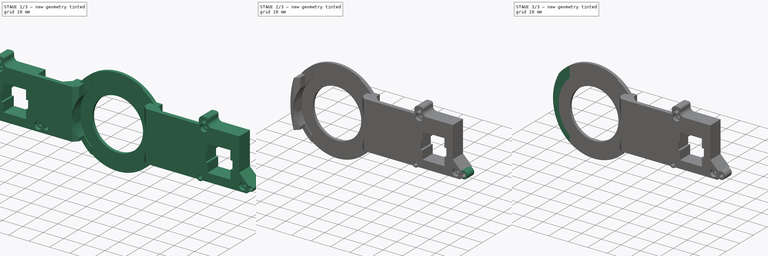
[diagram: build sequence overview — one tinted view per stage of 3, left to right]
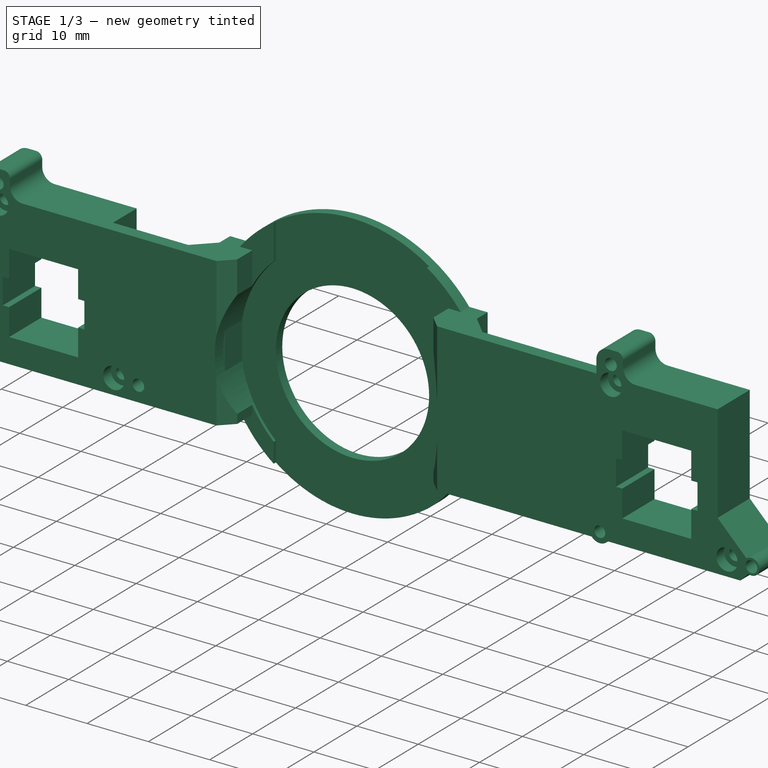
[diagram: stage 1 of 3 — iso view after this stage's code; geometry added in this stage tinted green]
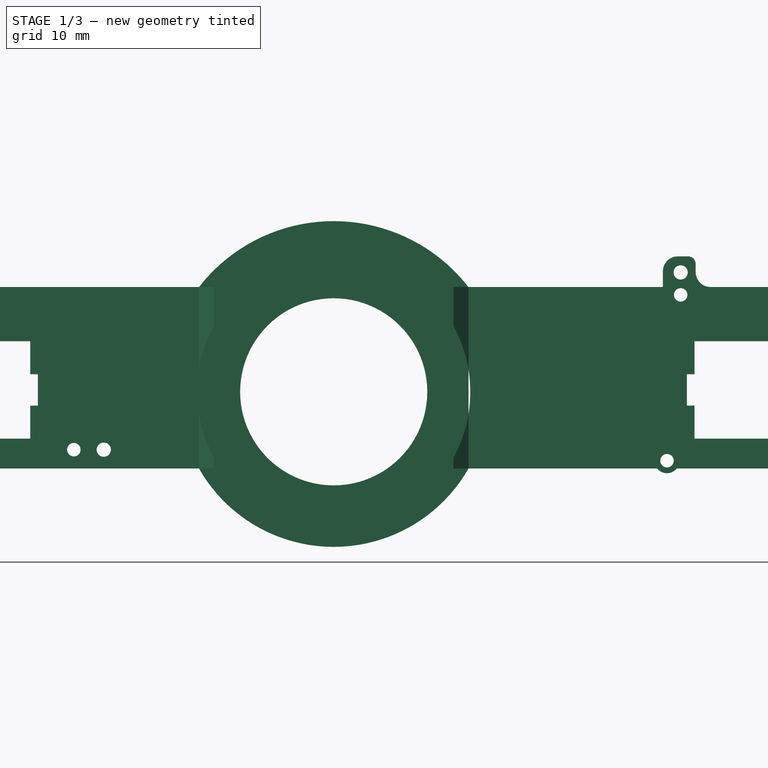
[diagram: stage 1 of 3 — front view after this stage's code; geometry added in this stage tinted green]
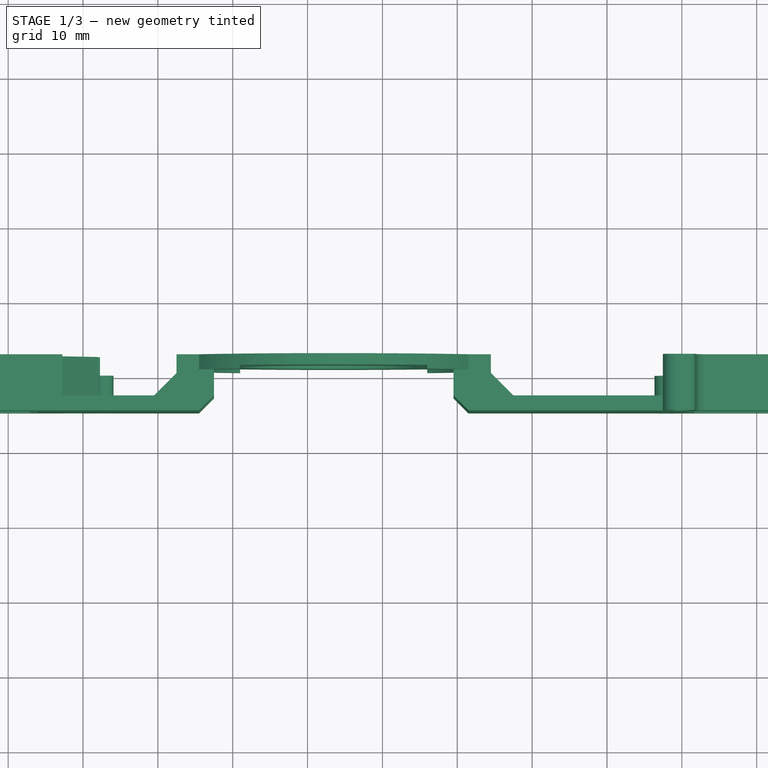
[diagram: stage 1 of 3 — top view after this stage's code; geometry added in this stage tinted green]
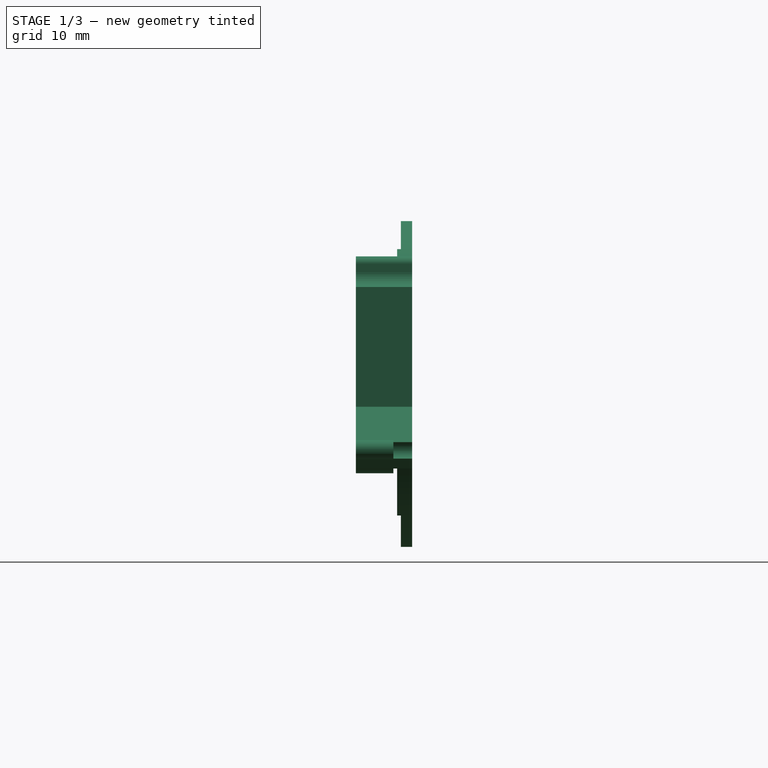
[diagram: stage 1 of 3 — right view after this stage's code; geometry added in this stage tinted green]
FCSTD DOCUMENT  (FreeCAD 0.19R24291 (Git))
Label: Sample Plate One Side
License: All rights reserved
LicenseURL: http://en.wikipedia.org/wiki/All_rights_reserved
objects: Sketcher::SketchObject×6, PartDesign::Pocket×3, PartDesign::Pad×2, Part::Feature×1, Part::Refine×1, PartDesign::FeatureBase×1, PartDesign::Body×1
note: 20 computed .brp shape members not serialized (recipe doc carries the construction recipe); baked Part::Feature solids carry a one-line shape summary decoded from their .brp

FEATURE [Part::Feature] Assembly_XYZ_Stage_40_XY_Stage_Sample_Adapter_20001_solid  label="Assembly_XYZ_Stage_40_XY_Stage_Sample_Adapter_20001 (Solid)"
  shape: bbox 127.7 x 7.5 x 43.52 mm, 5298 faces (baked)
FEATURE [Part::Refine] Assembly_XYZ_Stage_40_XY_Stage_Sample_Adapter_20001_solid001  label="Assembly_XYZ_Stage_40_XY_Stage_Sample_Adapter_20001 (Solid)001"
  Source = -> Assembly_XYZ_Stage_40_XY_Stage_Sample_Adapter_20001_solid
FEATURE [PartDesign::FeatureBase] BaseFeature
  BaseFeature = -> Assembly_XYZ_Stage_40_XY_Stage_Sample_Adapter_20001_solid001
FEATURE [Sketcher::SketchObject] Sketch  label="Wider Peg Holes"
  ExternalGeometry = -> [BaseFeature]
  FullyConstrained = true
  MapMode = 5
  Placement = pos=(0,55.1165,0) rot=(1,0,0;1.5708rad)
  Support = -> [BaseFeature]
  sketch-geometry (8):
    g0: Circle CenterX=29.8443 CenterY=41.4417 CenterZ=0 NormalX=0 NormalY=0 NormalZ=1 AngleXU=0 Radius=0.85
    g1: Circle CenterX=52.7736 CenterY=17.7624 CenterZ=0 NormalX=0 NormalY=0 NormalZ=1 AngleXU=0 Radius=0.85
    g2: Circle CenterX=152.774 CenterY=17.7624 CenterZ=0 NormalX=0 NormalY=0 NormalZ=1 AngleXU=0 Radius=0.85
    g3: Circle CenterX=129.844 CenterY=41.4417 CenterZ=0 NormalX=0 NormalY=0 NormalZ=1 AngleXU=0 Radius=0.849998
    g4: Circle CenterX=129.844 CenterY=41.4417 CenterZ=0 NormalX=0 NormalY=0 NormalZ=1 AngleXU=0 Radius=0.95
    g5: Circle CenterX=152.774 CenterY=17.7624 CenterZ=0 NormalX=0 NormalY=0 NormalZ=1 AngleXU=0 Radius=0.95
    g6: Circle CenterX=52.7736 CenterY=17.7624 CenterZ=0 NormalX=0 NormalY=0 NormalZ=1 AngleXU=0 Radius=0.95
    g7: Circle CenterX=29.8443 CenterY=41.4417 CenterZ=0 NormalX=0 NormalY=0 NormalZ=1 AngleXU=0 Radius=0.95
  constraints (20):
    c: PointOnObject(g-3,g0)
    c: PointOnObject(g-5,g0)
    c: PointOnObject(g-4,g0)
    c: PointOnObject(g-6,g1)
    c: PointOnObject(g-8,g1)
    c: PointOnObject(g-7,g1)
    c: PointOnObject(g-10,g2)
    c: PointOnObject(g-11,g2)
    c: PointOnObject(g-9,g2)
    c: PointOnObject(g-13,g3)
    c: PointOnObject(g-14,g3)
    c: PointOnObject(g-12,g3)
    c: Coincident(g4,g3)
    c: Coincident(g5,g2)
    c: Coincident(g6,g1)
    c: Coincident(g7,g0)
    c: Diameter(g7) = 1.9
    c: Equal(g7,g6)
    c: Equal(g4,g5)
    c: Equal(g7,g4)
FEATURE [PartDesign::Pocket] Pocket
  BaseFeature = -> BaseFeature
  Length = 0
  Length2 = 100
  Profile = -> Sketch
  Type = 3
  UpToFace = -> BaseFeature [Face524]
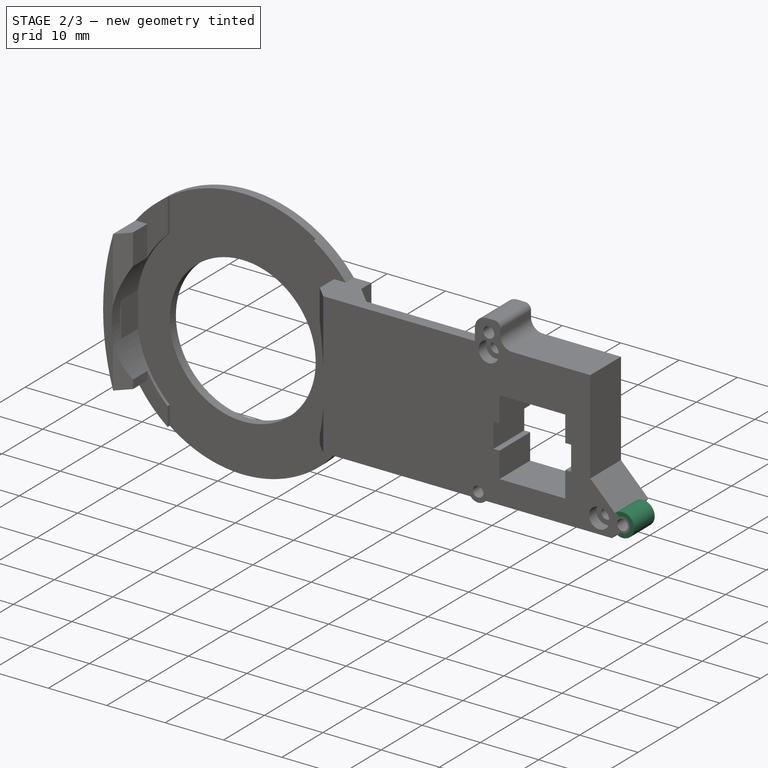
[diagram: stage 2 of 3 — iso view after this stage's code; geometry added in this stage tinted green]
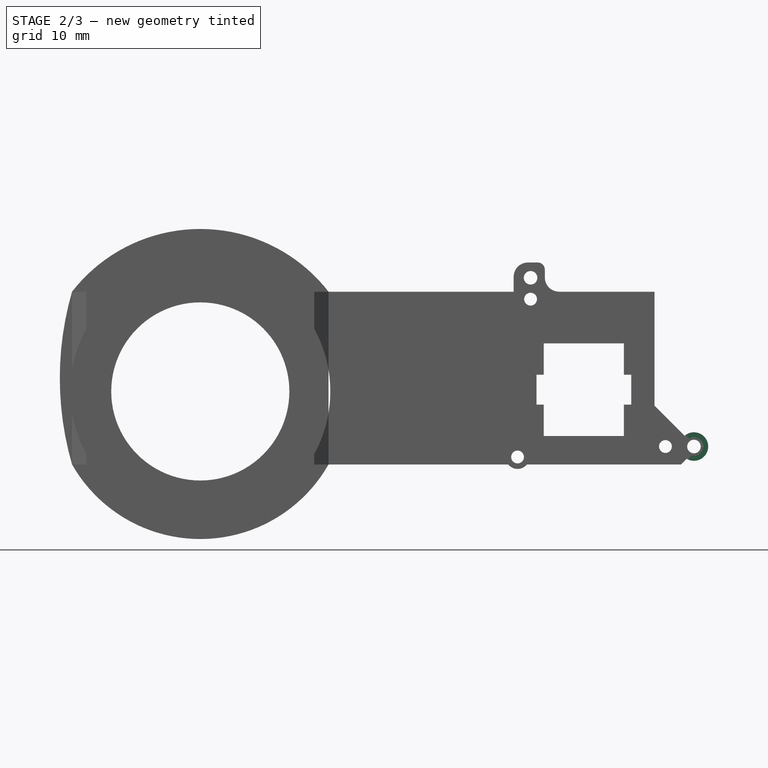
[diagram: stage 2 of 3 — front view after this stage's code; geometry added in this stage tinted green]
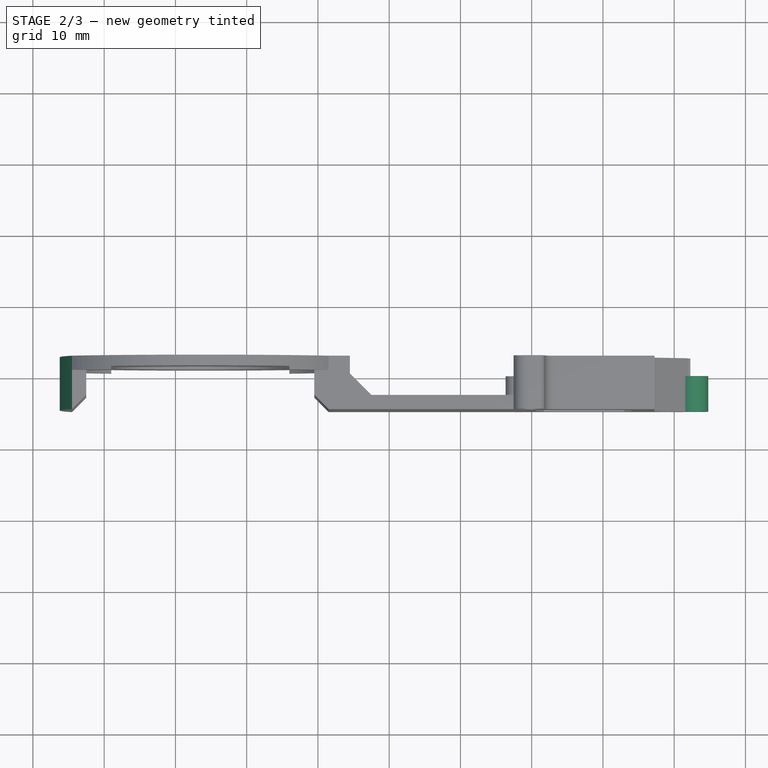
[diagram: stage 2 of 3 — top view after this stage's code; geometry added in this stage tinted green]
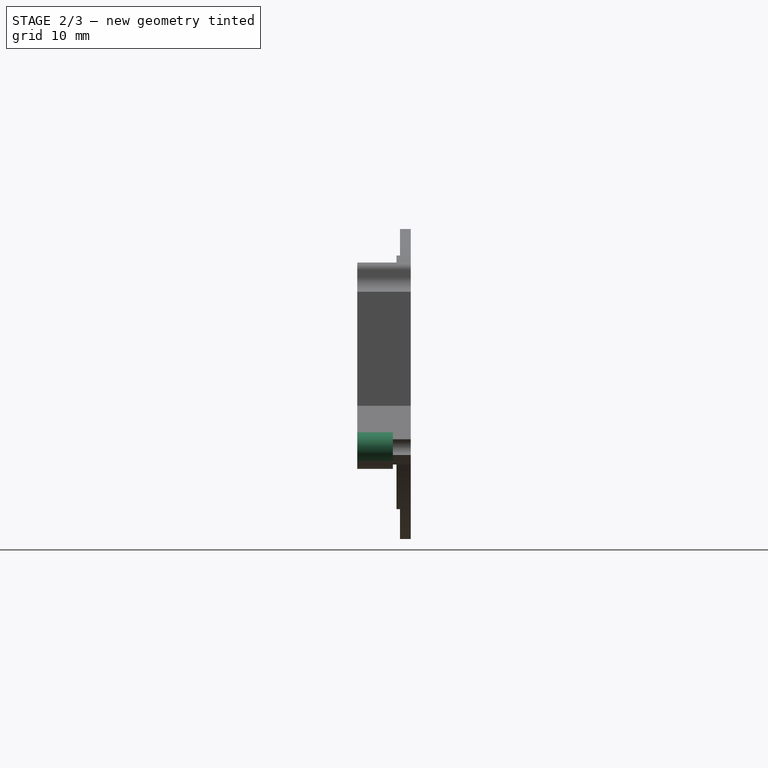
[diagram: stage 2 of 3 — right view after this stage's code; geometry added in this stage tinted green]
FEATURE [Sketcher::SketchObject] Sketch001  label="Wider Peg Support"
  ExternalGeometry = -> [Pocket]
  FullyConstrained = true
  MapMode = 5
  Placement = pos=(0,60.1165,0) rot=(0,0.707107,0.707107;3.14159rad)
  Support = -> [Pocket]
  sketch-geometry (4):
    g0: ArcOfCircle CenterX=-152.774 CenterY=17.7624 CenterZ=0 NormalX=0 NormalY=0 NormalZ=1 AngleXU=0 Radius=2 StartAngle=0.856167 EndAngle=5.25087
    g1: LineSegment StartX=-151.748 StartY=16.0454 StartZ=0 EndX=-152.267 EndY=16.5649 EndZ=0
    g2: LineSegment StartX=-151.463 StartY=19.273 StartZ=0 EndX=-151.96 EndY=18.7761 EndZ=0
    g3: ArcOfCircle CenterX=-152.774 CenterY=17.7624 CenterZ=0 NormalX=0 NormalY=0 NormalZ=1 AngleXU=0 Radius=1.3 StartAngle=0.894401 EndAngle=5.11228
  constraints (11):
    c: PointOnObject(g0,g-3)
    c: PointOnObject(g0,g-4)
    c: Diameter(g0) = 4
    c: Coincident(g0,g-5)
    c: Coincident(g1,g0)
    c: Coincident(g1,g-4)
    c: Coincident(g2,g0)
    c: Coincident(g2,g-3)
    c: Coincident(g3,g2)
    c: Coincident(g3,g1)
    c: PointOnObject(g-6,g3)
FEATURE [PartDesign::Pad] Pad
  BaseFeature = -> Pocket
  Direction = (1,1,1)
  Length = 10
  Length2 = 100
  Profile = -> Sketch001
  Type = 3
  UpToFace = -> Pocket [Face226]
FEATURE [Sketcher::SketchObject] Sketch002  label="Remove Side"
  ExternalGeometry = -> [Pad]
  FullyConstrained = true
  MapMode = 5
  Placement = pos=(0,62.6165,0) rot=(0,0.707107,0.707107;3.14159rad)
  Support = -> [Pad]
  sketch-geometry (10):
    g0: ArcOfCircle CenterX=-107.444 CenterY=27.3667 CenterZ=0 NormalX=0 NormalY=0 NormalZ=1 AngleXU=0 Radius=43.67 StartAngle=6.00184 EndAngle=6.56453
    g1: LineSegment StartX=-29.5912 StartY=43.6917 StartZ=0 EndX=-31.5912 EndY=43.6917 EndZ=0
    g2: LineSegment StartX=-32.5912 StartY=42.5917 StartZ=0 EndX=-32.5912 EndY=41.4917 EndZ=0
    g3: LineSegment StartX=-65.4912 StartY=39.4917 StartZ=0 EndX=-34.4912 EndY=39.4917 EndZ=0
    g4: LineSegment StartX=-27.4693 StartY=41.5938 StartZ=0 EndX=-27.4693 EndY=17.8738 EndZ=0
    g5: LineSegment StartX=-65.4912 StartY=15.2417 StartZ=0 EndX=-29.3243 EndY=15.2417 EndZ=0
    g6: ArcOfCircle CenterX=-27.977 CenterY=16.2619 CenterZ=0 NormalX=0 NormalY=0 NormalZ=1 AngleXU=0 Radius=1.69 StartAngle=3.78968 EndAngle=7.54885
    g7: ArcOfCircle CenterX=-29.3574 CenterY=41.8061 CenterZ=0 NormalX=0 NormalY=0 NormalZ=1 AngleXU=0 Radius=1.9 StartAngle=6.1712 EndAngle=7.97738
    g8: ArcOfCircle CenterX=-31.729 CenterY=42.8124 CenterZ=0 NormalX=0 NormalY=0 NormalZ=1 AngleXU=0 Radius=0.89 StartAngle=1.41533 EndAngle=3.39222
    g9: ArcOfCircle CenterX=-34.6796 CenterY=41.5732 CenterZ=0 NormalX=0 NormalY=0 NormalZ=1 AngleXU=0 Radius=2.09 StartAngle=4.80266 EndAngle=6.24418
  constraints (31):
    c: Coincident(g0,g-3)
    c: Coincident(g0,g-6)
    c: Coincident(g3,g0)
    c: Coincident(g4,g-14)
    c: Coincident(g5,g0)
    c: Coincident(g5,g-17)
    c: Radius(g0) = 43.67
    c: Coincident(g6,g5)
    c: Coincident(g6,g4)
    c: Coincident(g7,g4)
    c: Coincident(g7,g1)
    c: Coincident(g8,g1)
    c: Coincident(g8,g2)
    c: Radius(g8) = 0.89
    c: Radius(g7) = 1.9
    c: Radius(g6) = 1.69
    c: Vertical(g4)
    c: Horizontal(g1)
    c: Vertical(g2)
    c: DistanceY(g4,g4) = 23.72
    c: DistanceX(g1,g1) = 2
    c: DistanceY(g2,g2) = 1.1
    c: DistanceY(g2,g1) = 1.1
    c: DistanceX(g2,g1) = 1
    c: Coincident(g9,g2)
    c: Coincident(g9,g3)
    c: Horizontal(g3)
    c: DistanceX(g3,g3) = 31
    c: DistanceX(g3,g2) = 1.9
    c: DistanceY(g3,g2) = 2
    c: Radius(g9) = 2.09
FEATURE [PartDesign::Pocket] Pocket001
  BaseFeature = -> Pad
  Length = 0
  Length2 = 100
  Profile = -> Sketch002
  Type = 3
  UpToFace = -> Pad [Face755]
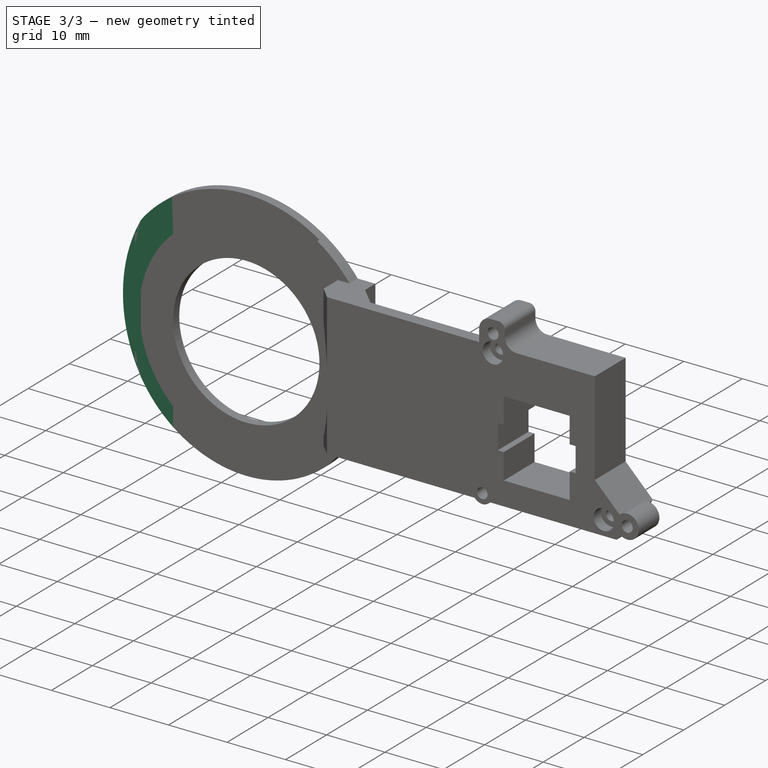
[diagram: stage 3 of 3 — iso view after this stage's code; geometry added in this stage tinted green]
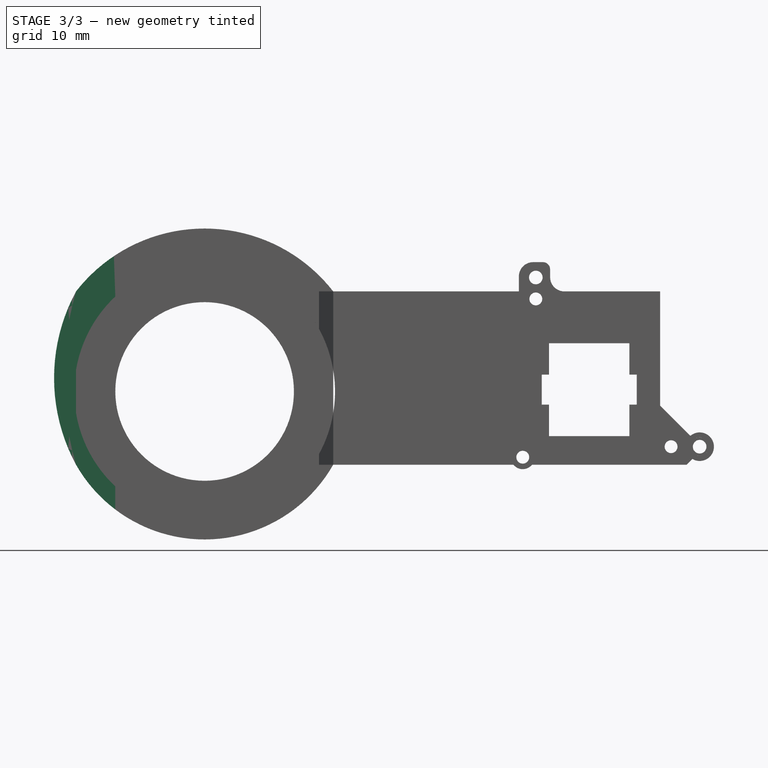
[diagram: stage 3 of 3 — front view after this stage's code; geometry added in this stage tinted green]
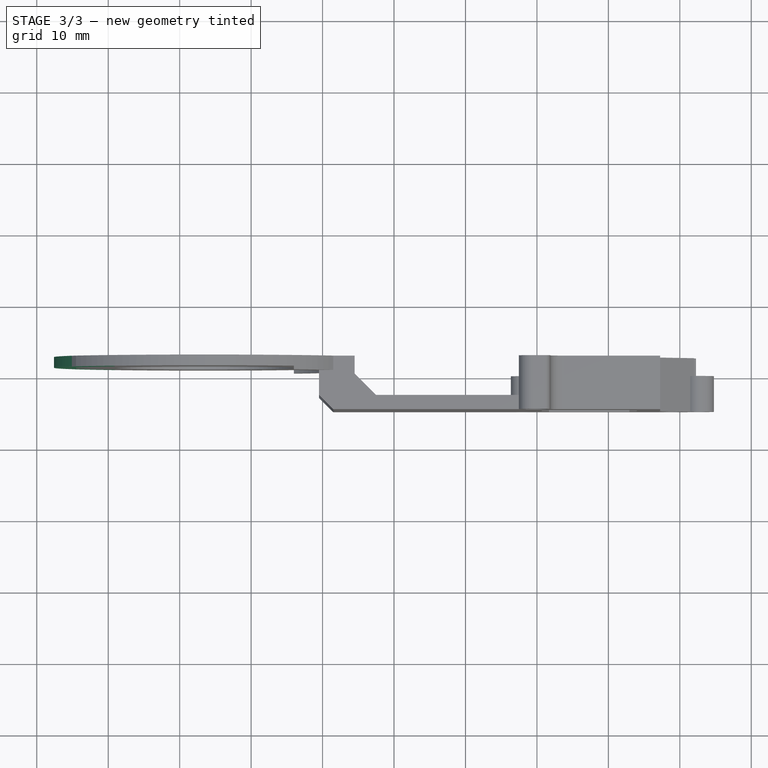
[diagram: stage 3 of 3 — top view after this stage's code; geometry added in this stage tinted green]
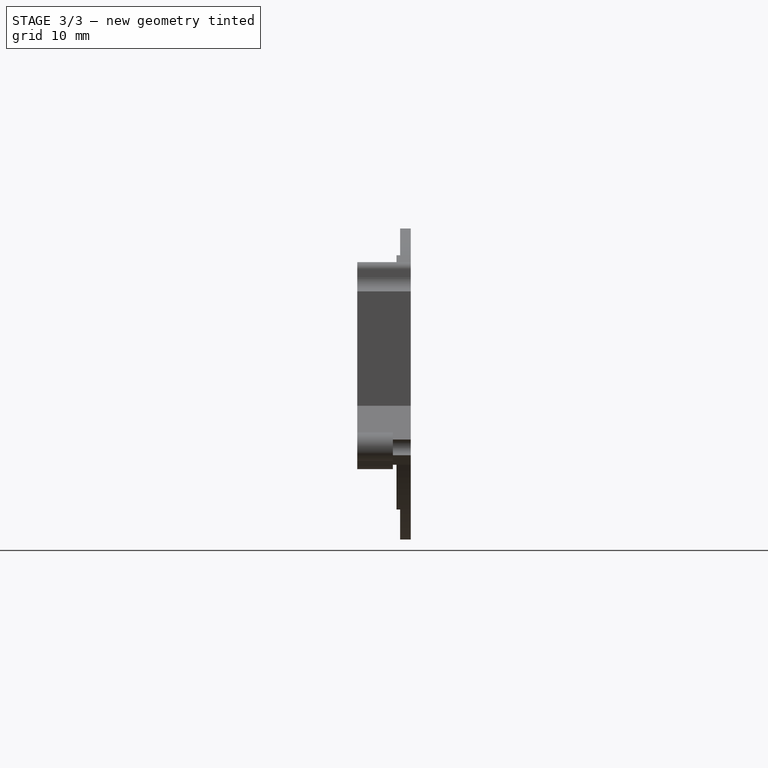
[diagram: stage 3 of 3 — right view after this stage's code; geometry added in this stage tinted green]
FEATURE [Sketcher::SketchObject] Sketch003  label="Remove Extra Side Bits"
  ExternalGeometry = -> [Pocket001]
  FullyConstrained = true
  MapMode = 5
  Placement = pos=(0,55.1165,0) rot=(1,0,0;1.5708rad)
  Support = -> [Pocket001]
  sketch-geometry (4):
    g0: ArcOfCircle CenterX=79.9665 CenterY=26.7693 CenterZ=0 NormalX=0 NormalY=0 NormalZ=1 AngleXU=0 Radius=19.93 StartAngle=2.03794 EndAngle=4.24524
    g1: ArcOfCircle CenterX=85.9976 CenterY=25.4917 CenterZ=0 NormalX=0 NormalY=0 NormalZ=1 AngleXU=0 Radius=20.05 StartAngle=2.41651 EndAngle=3.86667
    g2: LineSegment StartX=70.9912 StartY=12.1946 StartZ=0 EndX=70.9912 EndY=8.97466 EndZ=0
    g3: LineSegment StartX=70.9912 StartY=38.7888 StartZ=0 EndX=70.9912 EndY=44.5639 EndZ=0
  constraints (10):
    c: Coincident(g0,g-3)
    c: Coincident(g0,g-4)
    c: Coincident(g1,g-4)
    c: Coincident(g1,g-3)
    c: Coincident(g2,g1)
    c: Coincident(g2,g0)
    c: Coincident(g3,g1)
    c: Coincident(g3,g0)
    c: Radius(g1) = 20.05
    c: Radius(g0) = 19.93
FEATURE [PartDesign::Pocket] Pocket002
  BaseFeature = -> Pocket001
  Length = 0
  Length2 = 100
  Profile = -> Sketch003
  Type = 3
  UpToFace = -> Pocket001 [Face689]
FEATURE [Sketcher::SketchObject] Sketch004  label="Fill in Circular Mount Plate"
  ExternalGeometry = -> [Pocket002]
  FullyConstrained = true
  MapMode = 5
  Placement = pos=(0,62.6165,0) rot=(0,0.707107,0.707107;3.14159rad)
  Support = -> [Pocket002]
  sketch-geometry (2):
    g0: ArcOfCircle CenterX=-87.89 CenterY=27.3667 CenterZ=0 NormalX=0 NormalY=0 NormalZ=1 AngleXU=0 Radius=25.47 StartAngle=5.78703 EndAngle=6.77934
    g1: ArcOfCircle CenterX=-107.444 CenterY=27.3667 CenterZ=0 NormalX=0 NormalY=0 NormalZ=1 AngleXU=0 Radius=43.67 StartAngle=6.00184 EndAngle=6.56453
  constraints (6):
    c: Coincident(g0,g-3)
    c: Coincident(g0,g-4)
    c: Coincident(g1,g0)
    c: Coincident(g1,g0)
    c: Tangent(g1,g-5)
    c: Radius(g0) = 25.47
FEATURE [PartDesign::Pad] Pad001
  BaseFeature = -> Pocket002
  Direction = (1,1,1)
  Length = 0
  Length2 = 100
  Profile = -> Sketch004
  Type = 3
  UpToFace = -> Pocket002 [Face743]
FEATURE [Sketcher::SketchObject] Sketch005  label="Motor Mount Sketch"
  ExternalGeometry = -> [Pad001]
  FullyConstrained = false
  MapMode = 5
  Placement = pos=(0,62.6165,0) rot=(0,0.707107,0.707107;3.14159rad)
  Support = -> [Pad001]
  sketch-geometry (12):
    g0: Circle CenterX=-152.774 CenterY=17.7624 CenterZ=0 NormalX=0 NormalY=0 NormalZ=1 AngleXU=0 Radius=1.3
    g1: ArcOfCircle CenterX=-130.844 CenterY=42.5917 CenterZ=0 NormalX=0 NormalY=0 NormalZ=1 AngleXU=0 Radius=1 StartAngle=1.5708 EndAngle=3.14159
    g2: ArcOfCircle CenterX=-129.469 CenterY=41.5917 CenterZ=0 NormalX=0 NormalY=0 NormalZ=1 AngleXU=0 Radius=2 StartAngle=6.51824e-07 EndAngle=1.5708
    g3: ArcOfCircle CenterX=-133.844 CenterY=41.4917 CenterZ=0 NormalX=0 NormalY=0 NormalZ=1 AngleXU=0 Radius=2 StartAngle=4.71239 EndAngle=6.28318
    g4: Circle CenterX=-148.774 CenterY=17.7624 CenterZ=0 NormalX=0 NormalY=0 NormalZ=1 AngleXU=0 Radius=1.675
    g5: Circle CenterX=-128.019 CenterY=16.2917 CenterZ=0 NormalX=0 NormalY=0 NormalZ=1 AngleXU=0 Radius=1.675
    g6: Circle CenterX=-129.844 CenterY=38.4417 CenterZ=0 NormalX=0 NormalY=0 NormalZ=1 AngleXU=0 Radius=0.899998
    g7: Circle CenterX=-129.844 CenterY=38.4417 CenterZ=0 NormalX=0 NormalY=0 NormalZ=1 AngleXU=0 Radius=1.675
    g8: Circle CenterX=-128.019 CenterY=16.2917 CenterZ=0 NormalX=0 NormalY=0 NormalZ=1 AngleXU=0 Radius=0.900001
    g9: Circle CenterX=-148.774 CenterY=17.7624 CenterZ=0 NormalX=0 NormalY=0 NormalZ=1 AngleXU=0 Radius=0.900003
    g10: LineSegment StartX=-150.944 StartY=15.2417 StartZ=0 EndX=-152.722 EndY=15.2417 EndZ=0
    g11: LineSegment StartX=-147.244 StartY=23.4917 StartZ=0 EndX=-154.057 EndY=23.4917 EndZ=0
  constraints (39):
    c: Coincident(g0,g-21)
    c: PointOnObject(g-9,g0)
    c: Coincident(g1,g-4)
    c: Coincident(g1,g-5)
    c: PointOnObject(g-30,g1)
    c: Coincident(g2,g-6)
    c: Coincident(g2,g-5)
    c: PointOnObject(g-29,g2)
    c: Coincident(g3,g-4)
    c: Coincident(g3,g-3)
    c: PointOnObject(g-28,g3)
    c: PointOnObject(g-32,g4)
    c: PointOnObject(g-33,g4)
    c: PointOnObject(g-34,g4)
    c: PointOnObject(g-31,g5)
    c: PointOnObject(g-7,g5)
    c: PointOnObject(g-6,g5)
    c: PointOnObject(g-24,g6)
    c: PointOnObject(g-26,g6)
    c: PointOnObject(g-25,g6)
    c: Coincident(g7,g6)
    c: PointOnObject(g-35,g7)
    c: Coincident(g8,g5)
    c: PointOnObject(g-22,g8)
    c: Coincident(g9,g4)
    c: PointOnObject(g-23,g9)
    c: DistanceX(g-17,g-6) = 3.2
    c: DistanceY(g-7,g-19) = 4
    c: DistanceX(g-5,g-5) = 1.375
    c: DistanceY(g-4,g-4) = 1.1
    c: DistanceX(g-3,g-3) = 13.4
    c: DistanceY(g-10,g-10) = 16
    c: DistanceX(g-7,g-7) = 21.6199
    c: Coincident(g10,g-8)
    c: Horizontal(g10)
    c: Coincident(g11,g-10)
    c: Horizontal(g11)
    c: Distance(g-8) = 1.87132
    c: Distance(g-9) = 6.66881
FEATURE [PartDesign::Body] Body
  BaseFeature = -> Assembly_XYZ_Stage_40_XY_Stage_Sample_Adapter_20001_solid001
  Group = -> [BaseFeature,Sketch,Pocket,Sketch001,Pad,Sketch002,Pocket001,Sketch003,Pocket002,Sketch004,Pad001,Sketch005]
  Origin = -> Origin
  Tip = -> Pad001
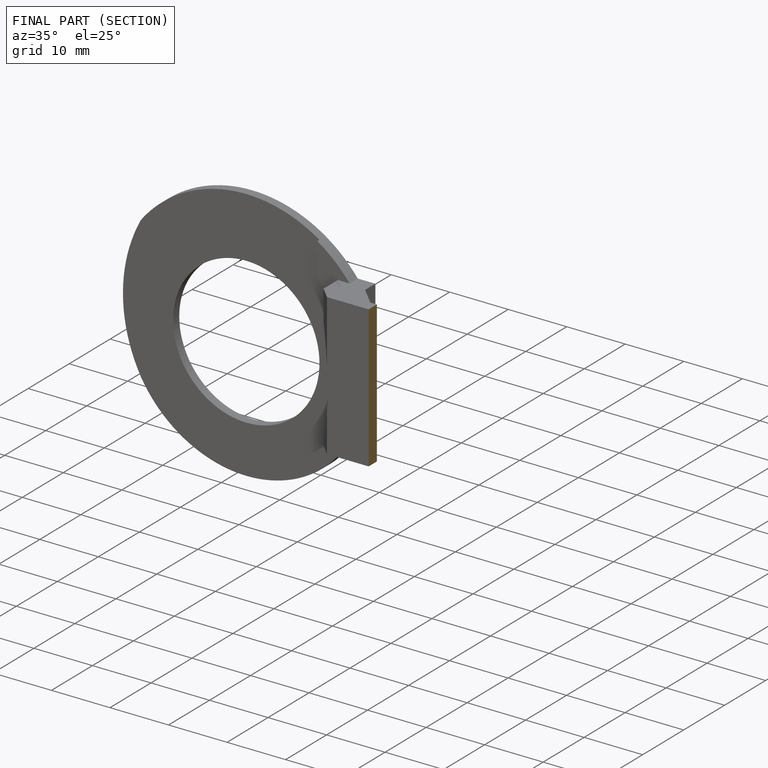
[diagram: finished part — half-section view (interior)]
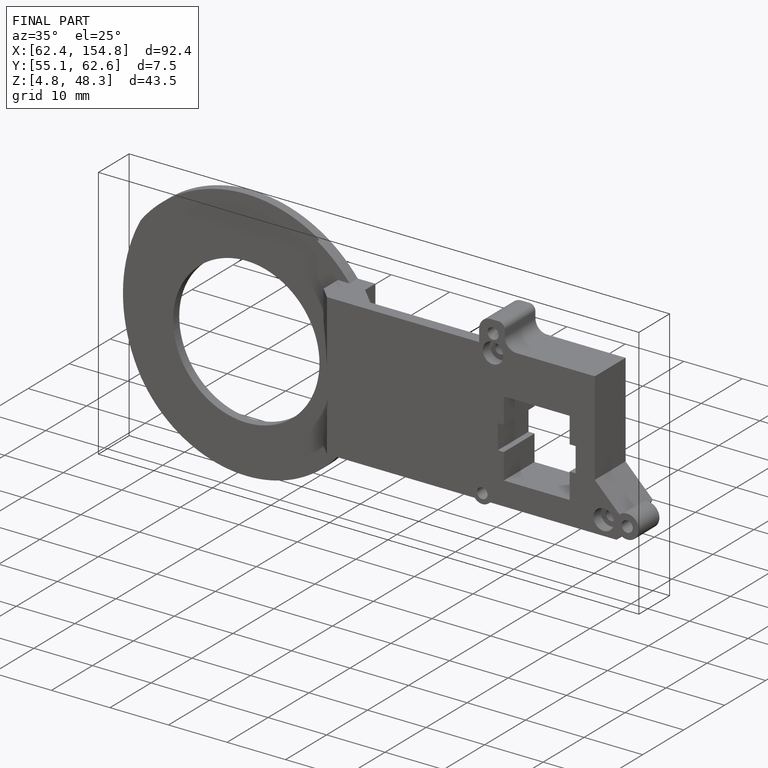
[diagram: finished part — iso view with bounding-box wireframe]
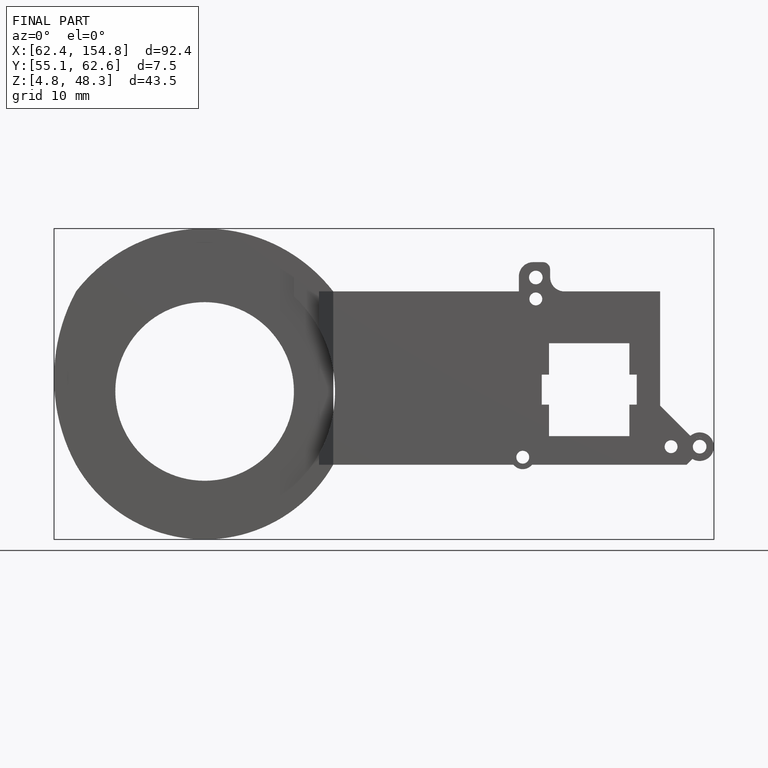
[diagram: finished part — front view with bounding-box wireframe]
